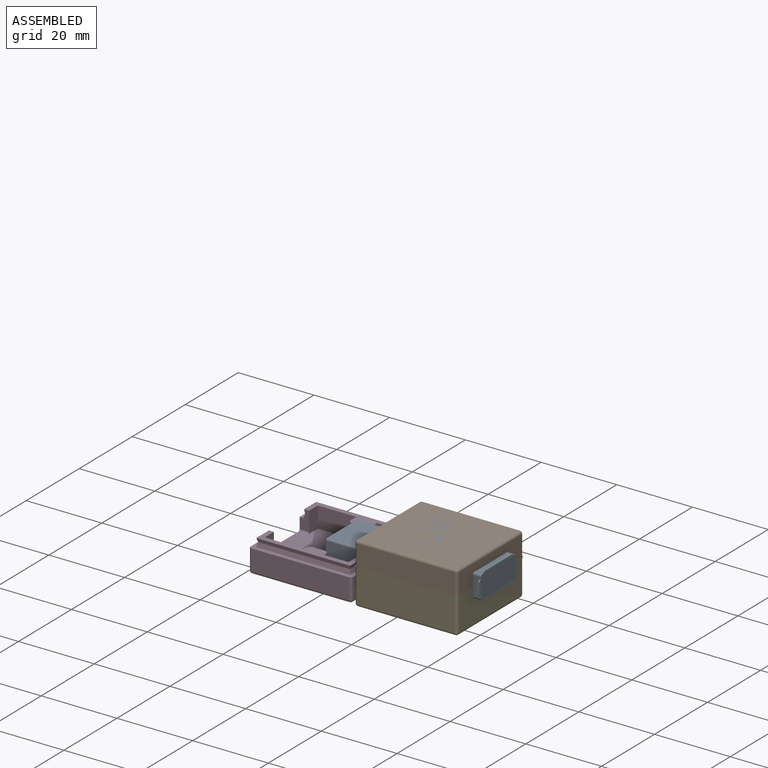
[diagram: assembled view]
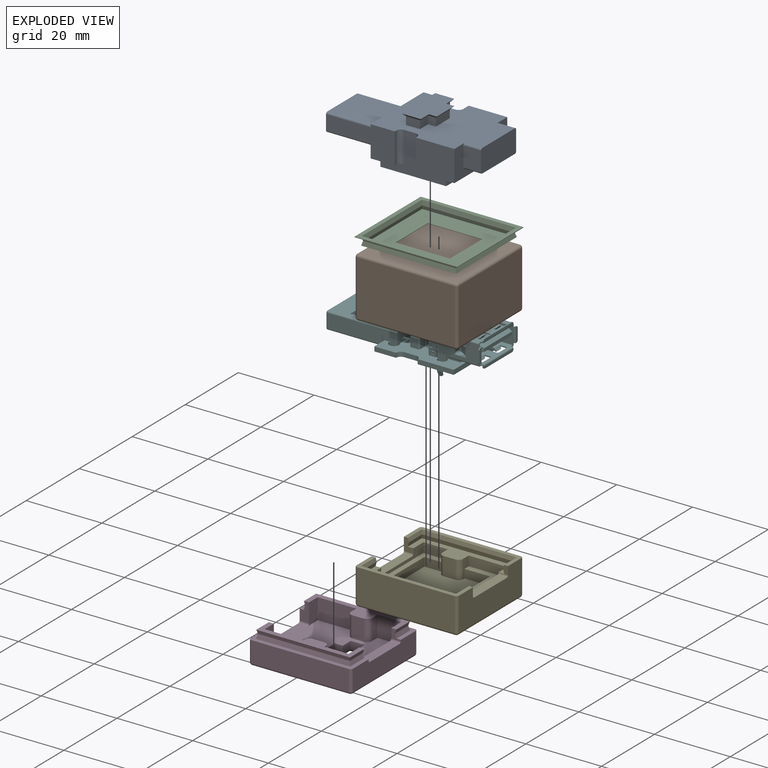
[diagram: exploded view]
GUIDED TOUR — FREECAD ASSEMBLY "case"

This assembly has 6 components, labeled P0..P5 below (a component is one placed body or linked part; the same part can appear more than once), held together by 0 modeled joints plus 9 derived contact edges. A joint is a constraint between two components; its type names the relative motion it leaves free:
  CONTACT — a derived adjacency edge — the two components touch in the source model (clearance under 2% of the assembly's diagonal); it is measured from the geometry, not a modeled constraint.
Axis/direction vectors are unit vectors and 'through' points are millimeter coordinates, both in the assembly's world frame.

MATES
  1. CONTACT "contact_0_4": P0 <-> P4, contact direction (0.000, 0.000, -1.000) through (5.79, -0.58, -0.26) mm (derived from contact, not a modeled constraint)
  2. CONTACT "contact_0_5": P0 <-> P5, contact direction (0.000, 0.000, -1.000) through (5.76, 0.05, -0.13) mm (derived from contact, not a modeled constraint)
  3. CONTACT "contact_1_3": P1 <-> P3, contact direction (-1.000, 0.000, 0.000) through (-3.51, -2.38, -4.31) mm (derived from contact, not a modeled constraint)
  4. CONTACT "contact_1_4": P1 <-> P4, contact direction (0.000, 0.000, -1.000) through (-2.41, -3.08, -4.41) mm (derived from contact, not a modeled constraint)
  5. CONTACT "contact_2_4": P2 <-> P4, contact direction (0.000, 0.000, -1.000) through (23.02, -2.06, 2.29) mm (derived from contact, not a modeled constraint)
  6. CONTACT "contact_2_5": P2 <-> P5, contact direction (0.000, 0.000, -1.000) through (17.48, 3.29, 2.28) mm (derived from contact, not a modeled constraint)
  7. CONTACT "contact_3_4": P3 <-> P4, contact direction (1.000, 0.000, 0.000) through (-3.50, 3.39, 1.04) mm (derived from contact, not a modeled constraint)
  8. CONTACT "contact_3_5": P3 <-> P5, contact direction (0.000, 1.000, 0.000) through (-5.56, 3.60, 3.78) mm (derived from contact, not a modeled constraint)
  9. CONTACT "contact_4_5": P4 <-> P5, contact direction (0.000, 0.000, 1.000) through (6.76, 1.20, -0.13) mm (derived from contact, not a modeled constraint)

ASSEMBLY ORDER
  1. P4 — the base component [order heuristic]
  2. P1 — core [order heuristic]
  3. P5 — core [order heuristic]
  4. P2 — core [order heuristic]
  5. P0 — core [order heuristic]
  6. P3 [order verified]
Order-tag legend:
  [order verified] — this step's position reverses a verified removal order: the component was checked to insert without passing through the ones already placed.
  [order heuristic] — the first 5 components form the assembly's core: parts whose collision-free extraction could not be verified, listed in mate-graph order.

Of the 6 components, 3 carry a construction recipe — the FreeCAD feature program (sketches with constraints, then the solid features that consume them) that regenerates the part from scratch, quoted from this document or from the linked companion document it references; the rest are supplied as boundary geometry only. The tour below walks the components in assembly order: each is shown spotlighted twice — in the assembled view, then in the exploded view, where a leader line traces a displaced component back to its assembled socket (components that stay in place when exploded have no leader line; saturated green if recipe-attached, orange if geometry-only; every other component desaturated gray) — followed by its recipe or geometry summary and the mates that hold it.
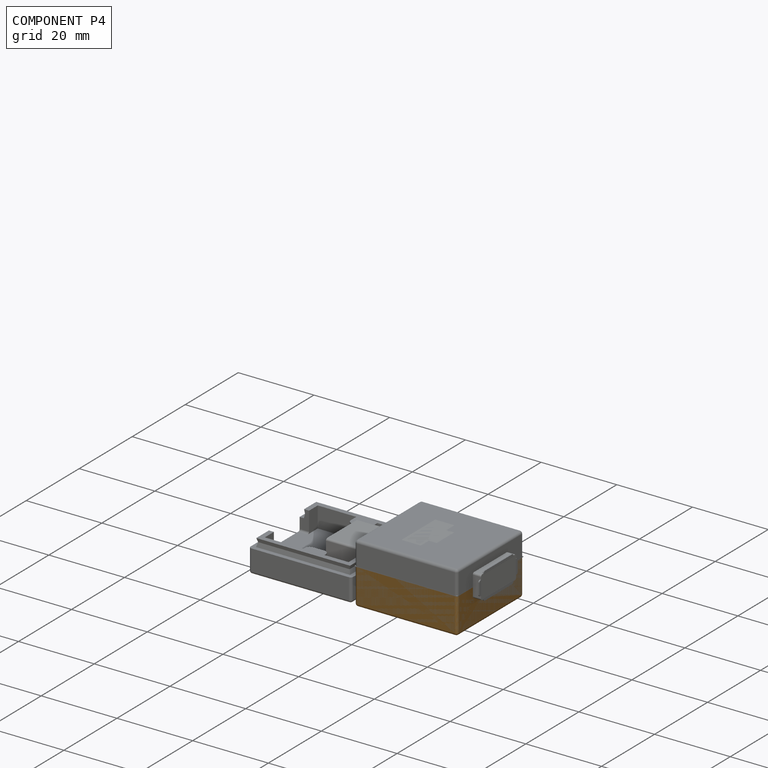
[diagram: component P4 — assembled]
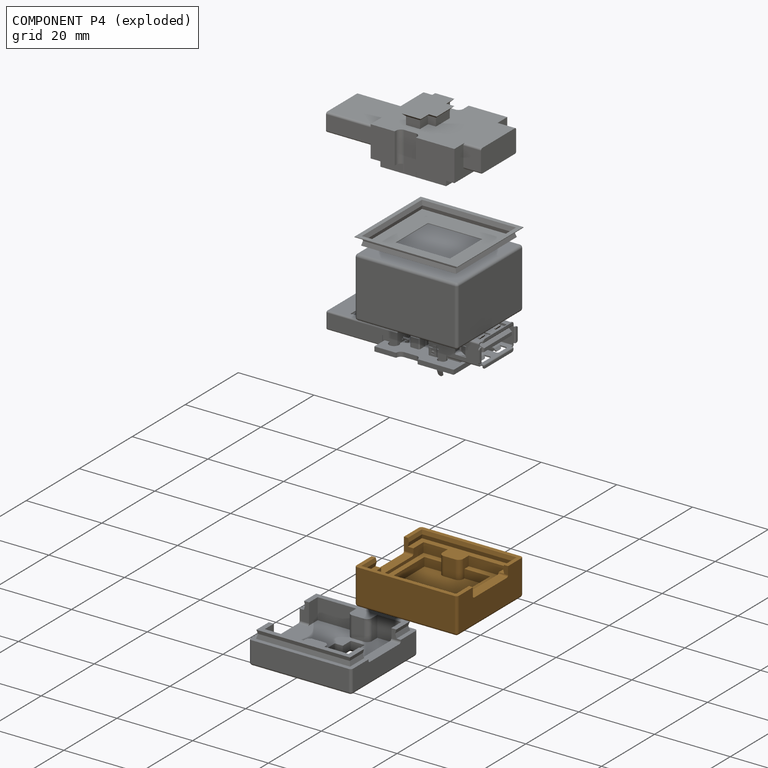
[diagram: component P4 — exploded]
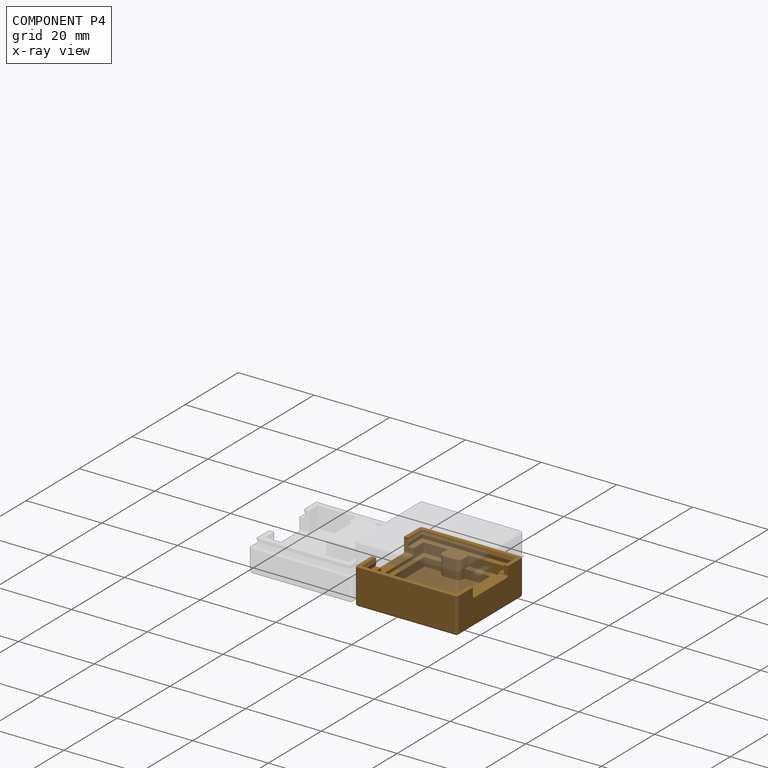
[diagram: component P4 — x-ray view]
COMPONENT P4 — geometry summary ("PO_Bottom"; no construction recipe available for this part):
  bounding box: 27.1 x 25.0 x 9.5 mm
  tessellated surface: 6,188 triangles
  volume: 3411 mm^3 (53% of its bounding box)
Held by: resting contact with P0 (derived edge); resting contact with P1 (derived edge); resting contact with P2 (derived edge); resting contact with P3 (derived edge); resting contact with P5 (derived edge).
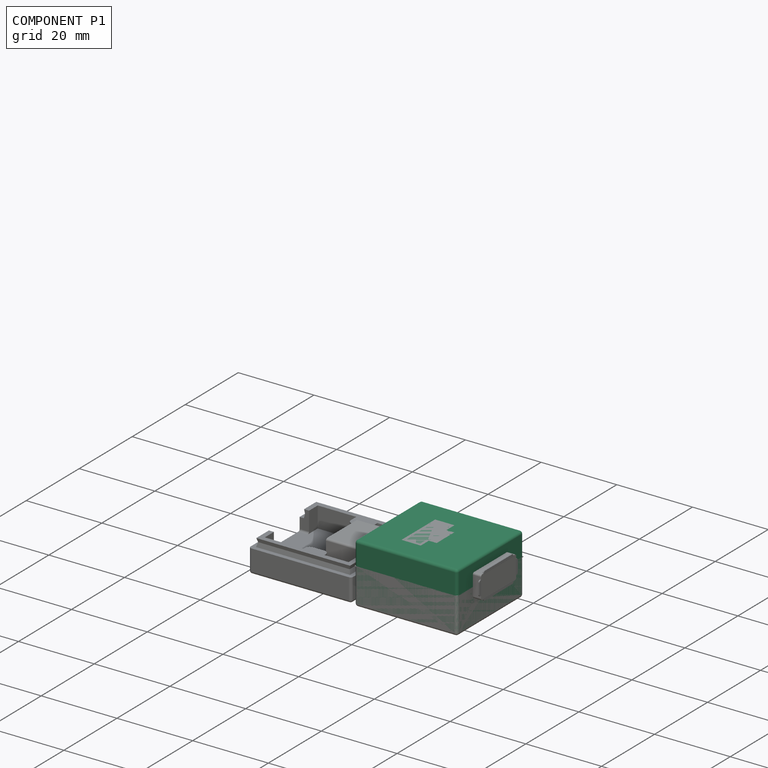
[diagram: component P1 — assembled]
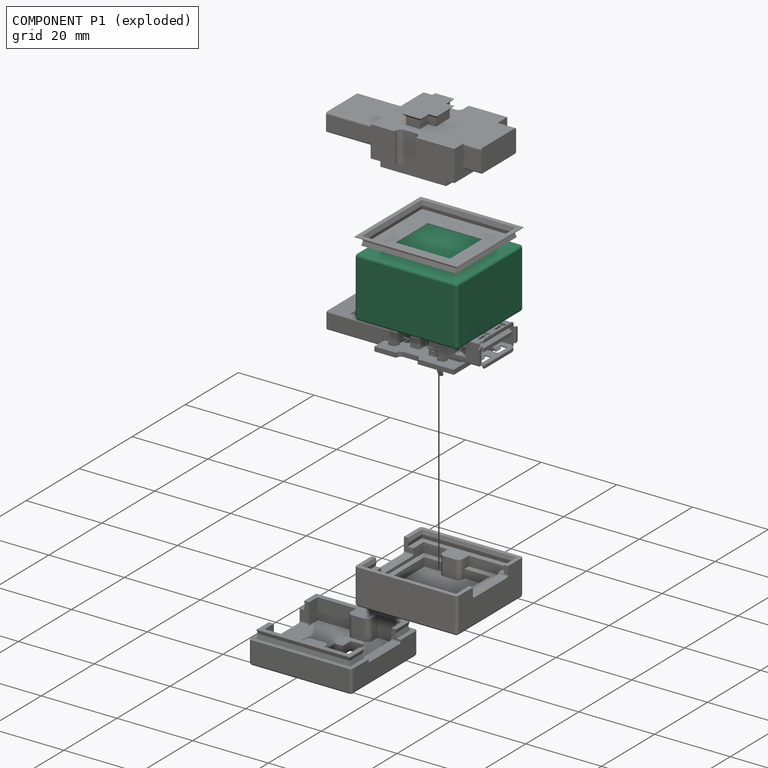
[diagram: component P1 — exploded]
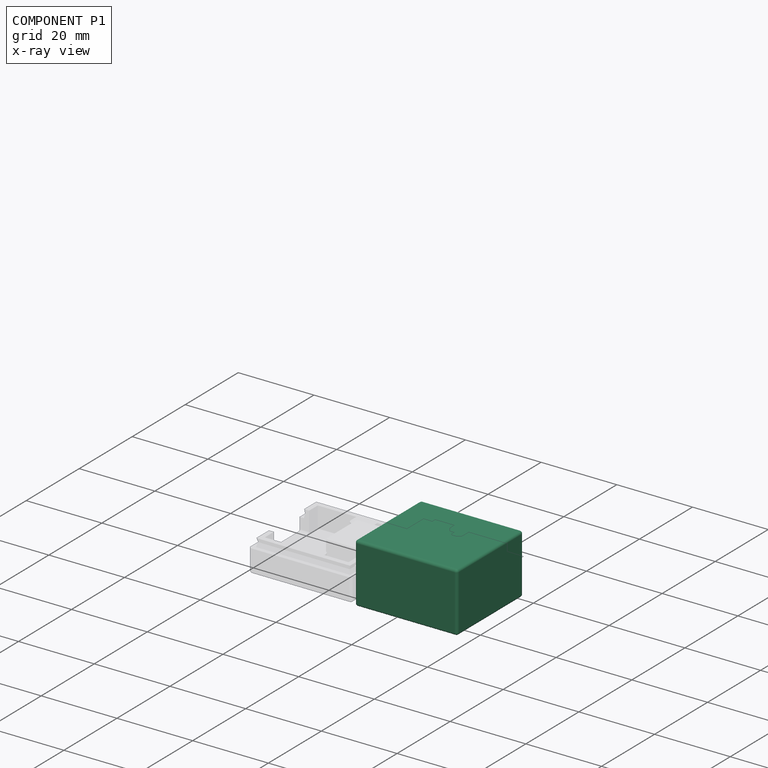
[diagram: component P1 — x-ray view]
COMPONENT P1 — recipe-attached ("BaseBody", modeled in this document).
Held by: resting contact with P3 (derived edge); resting contact with P4 (derived edge).
Construction recipe (the document's own serialized feature program — sketch geometry with constraints, then the solid features built on it; lengths are millimeters unless a unit is written):

FEATURE [Sketcher::SketchObject] Sketch008  label="BaseSketch"
  AttachmentOffset = pos=(0,0,-5.11) rot=(0,0,1;0rad)
  FullyConstrained = true
  MapMode = 5
  Placement = pos=(0,0,-5.11) rot=(0,0,1;0rad)
  Support = -> [XY_Plane005]
  expr: .AttachmentOffset.Base.z = -<<Param>>.T_WALL - <<Param>>.S_PIN - <<Param>>.T_Z
  expr: .Constraints.X1 = <<NegBaseSketch>>.Constraints.X1 - <<Param>>.T_WALL
  expr: .Constraints.X2 = <<NegBaseSketch>>.Constraints.X2 + <<Param>>.T_WALL
  expr: .Constraints.Y1 = <<NegBaseSketch>>.Constraints.Y1 - <<Param>>.T_WALL
  expr: .Constraints.Y2 = <<NegBaseSketch>>.Constraints.Y2 + <<Param>>.T_WALL
  sketch-geometry (4):
    g0: LineSegment StartX=-3.08 StartY=-3.08 StartZ=0 EndX=24.035 EndY=-3.08 EndZ=0
    g1: LineSegment StartX=24.035 StartY=-3.08 StartZ=0 EndX=24.035 EndY=21.876 EndZ=0
    g2: LineSegment StartX=24.035 StartY=21.876 StartZ=0 EndX=-3.08 EndY=21.876 EndZ=0
    g3: LineSegment StartX=-3.08 StartY=21.876 StartZ=0 EndX=-3.08 EndY=-3.08 EndZ=0
  constraints (12):
    c: Coincident(g0,g1)
    c: Coincident(g1,g2)
    c: Coincident(g2,g3)
    c: Coincident(g3,g0)
    c: Horizontal(g0)
    c: Horizontal(g2)
    c: Vertical(g1)
    c: Vertical(g3)
    c: DistanceX(g0) = -3.08  'X1'
    c: DistanceY(g0) = -3.08  'Y1'
    c: DistanceX(g1) = 24.035  'X2'
    c: DistanceY(g1) = 21.876  'Y2'
FEATURE [PartDesign::Pad] Pad006  label="BasePad"
  Direction = (0,0,1)
  Length = 15.84
  Length2 = 10
  Profile = -> Sketch008
  ReferenceAxis = -> Sketch008 [N_Axis]
  Type = 0
  expr: Length = <<NegBasePad>>.Length + <<Param>>.S_PIN + 2 * (<<Param>>.T_WALL + <<Param>>.T_Z)
FEATURE [PartDesign::Fillet] Fillet  label="BaseFillet"
  Base = -> Pad006 [Face6,Face1,Face5,Face3,Face4,Face2]
  BaseFeature = -> Pad006
  Radius = 0.7
  SupportTransform = false
  UseAllEdges = false
  expr: Radius = <<Param>>.R_CORNER
FEATURE [PartDesign::Body] Body001  label="BaseBody"
  Group = -> [Sketch008,Pad006,Fillet]
  Origin = -> Origin005
  Tip = -> Fillet
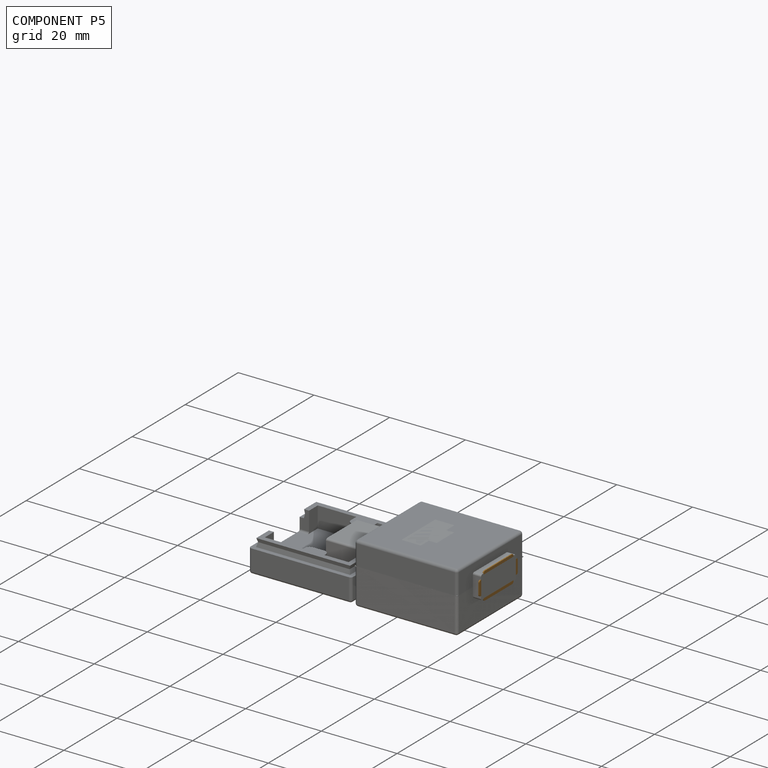
[diagram: component P5 — assembled]
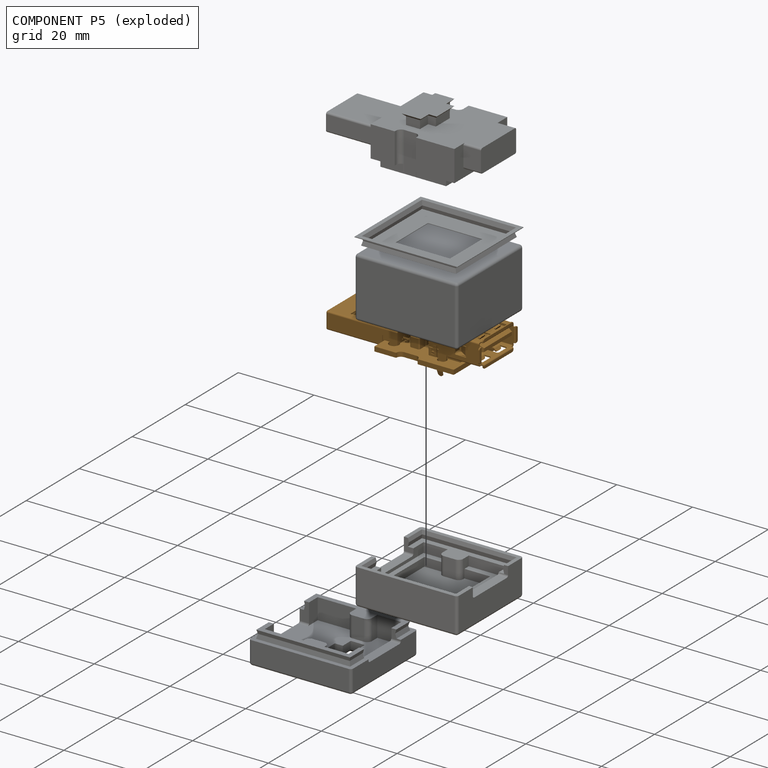
[diagram: component P5 — exploded]
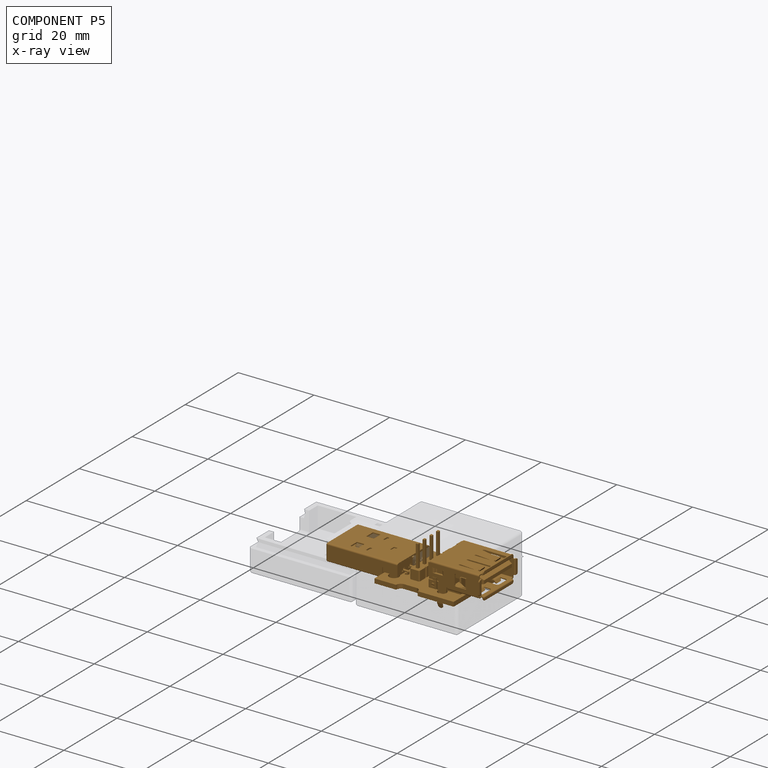
[diagram: component P5 — x-ray view]
COMPONENT P5 — geometry summary ("Open CASCADE STEP translator 6.9 1"; no construction recipe available for this part):
  bounding box: 41.3 x 18.8 x 12.3 mm
  tessellated surface: 49,550 triangles
  volume: 1748 mm^3 (18% of its bounding box)
  symmetry: mirror-symmetric across its y mid-plane
Held by: resting contact with P0 (derived edge); resting contact with P2 (derived edge); resting contact with P3 (derived edge); resting contact with P4 (derived edge).
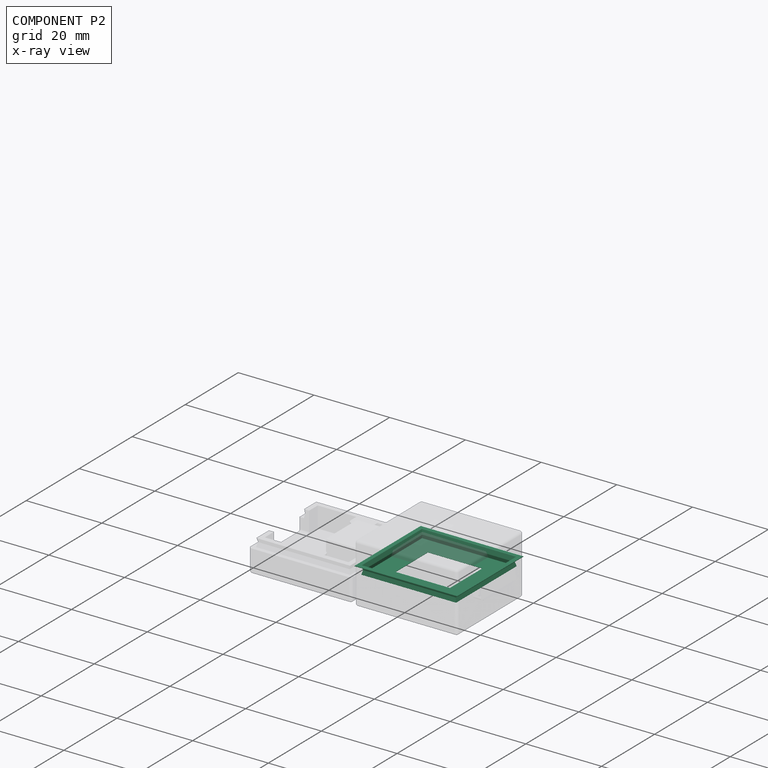
[diagram: component P2 — x-ray view]
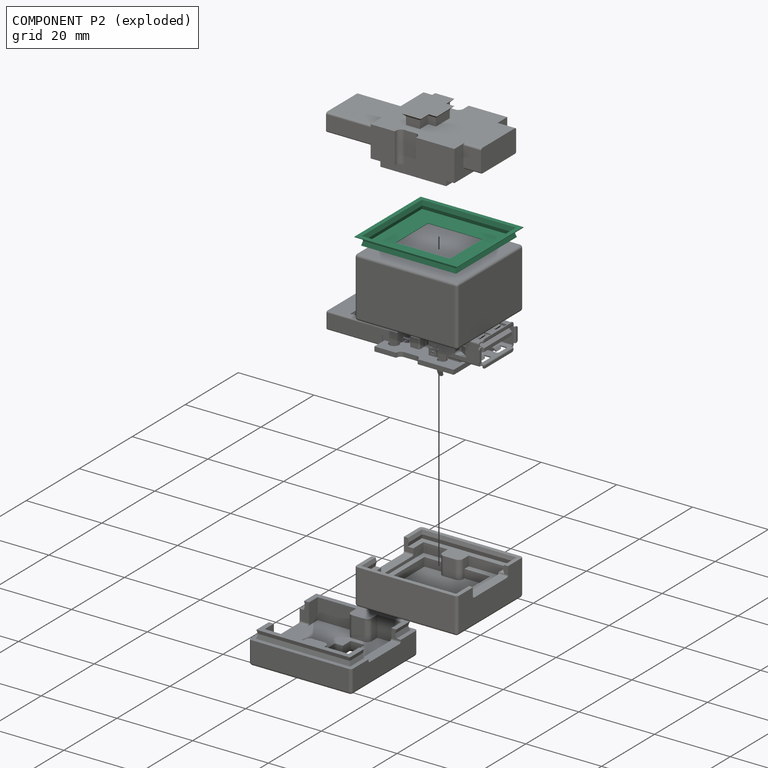
[diagram: component P2 — exploded]
COMPONENT P2 — recipe-attached ("Gap", modeled in this document).
Held by: resting contact with P4 (derived edge); resting contact with P5 (derived edge).
Construction recipe (the document's own serialized feature program — sketch geometry with constraints, then the solid features built on it; lengths are millimeters unless a unit is written):

FEATURE [Sketcher::SketchObject] Sketch009  label="GapProfileSketch"
  FullyConstrained = true
  MapMode = 5
  Placement = pos=(0,0,0) rot=(1,0,0;1.5708rad)
  Support = -> [XZ_Plane006]
  expr: .Constraints.Y1 = <<NegUsbJackSketch>>.Placement.Base.z + <<NegUsbJackEdgeSketch>>.Constraints.R1
  expr: Constraints[14] = max(max(<<NegBaseSketch>>.Constraints.X1; <<NegMountSketch>>.Constraints.Y1); <<NegBaseSketch>>.Constraints.Y2 - <<NegMountSketch>>.Constraints.Y2)
  expr: Constraints[15] = <<NegBaseSketch>>.Constraints.X1 - <<Param>>.T_WALL
  expr: Constraints[17] = 2 * <<Param>>.T_Z
  expr: Constraints[18] = 2 * <<Param>>.T_XY
  expr: Constraints[19] = <<Param>>.D_LATCH
  expr: Constraints[20] = <<Param>>.D_LATCH + 2 * <<Param>>.T_XY
  expr: Constraints[27] = <<Param>>.A_LATCH
  expr: Constraints[28] = 180 ° - <<Param>>.A_LATCH
  expr: Constraints[32] = <<NegBaseSketch>>.Constraints.Y1
  sketch-geometry (11):
    g0: LineSegment StartX=-3.08 StartY=4.57 StartZ=0 EndX=-1.94292 EndY=4.57 EndZ=0
    g1: LineSegment StartX=-1.90005 StartY=2.41 StartZ=0 EndX=3.294 EndY=2.41 EndZ=0
    g2: LineSegment StartX=3.294 StartY=2.41 StartZ=0 EndX=3.294 EndY=2.29 EndZ=0
    g3: LineSegment StartX=3.294 StartY=2.29 StartZ=0 EndX=-2.06005 EndY=2.29 EndZ=0
    g4: LineSegment StartX=-2.0279 StartY=4.41 StartZ=0 EndX=-3.08 EndY=4.41 EndZ=0
    g5: LineSegment StartX=-3.08 StartY=4.41 StartZ=0 EndX=-3.08 EndY=4.57 EndZ=0
    g6: LineSegment StartX=-1.94292 StartY=4.57 StartZ=0 EndX=-1.6321 EndY=3.41 EndZ=0
    g7: LineSegment StartX=-1.6321 StartY=3.41 StartZ=0 EndX=-1.90005 EndY=2.41 EndZ=0
    g8: LineSegment StartX=-2.06005 StartY=2.29 StartZ=0 EndX=-1.75995 EndY=3.41 EndZ=0
    g9: LineSegment StartX=-1.75995 StartY=3.41 StartZ=0 EndX=-2.0279 EndY=4.41 EndZ=0
    g10: LineSegment StartX=-1.6321 StartY=3.41 StartZ=0 EndX=-0.58 EndY=3.41 EndZ=0
  constraints (33):
    c: Horizontal(g0)
    c: Coincident(g0,g6)
    c: Coincident(g7,g1)
    c: Horizontal(g1)
    c: Coincident(g1,g2)
    c: Vertical(g2)
    c: Coincident(g2,g3)
    c: Horizontal(g3)
    c: Coincident(g3,g8)
    c: Coincident(g9,g4)
    c: Horizontal(g4)
    c: Coincident(g4,g5)
    c: Coincident(g5,g0)
    c: Vertical(g5)
    c: DistanceX(g2) = 3.294
    c: DistanceX(g4) = -3.08
    c: DistanceY(g2) = 2.29  'Y1'
    c: DistanceY(g2,g2) = 0.12
    c: DistanceX(g3,g7) = 0.16
    c: DistanceY(g7,g9) = 2
    c: DistanceY(g7,g6) = 2.16
    c: Coincident(g6,g7)
    c: Coincident(g8,g9)
    c: Horizontal(g6,g8)
    c: Parallel(g6,g9)
    c: Parallel(g8,g7)
    c: Equal(g9,g7)
    c: Angle(g1,g7) = 1.309
    c: Angle(g4,g9) = 1.8326
    c: Coincident(g10,g6)
    c: Horizontal(g10)
    c: Equal(g10,g4)
    c: DistanceX(g10) = -0.58
FEATURE [PartDesign::ShapeBinder] ShapeBinder  label="NegBaseSketchShapeBinder"
  Placement = pos=(0,0,-0.26) rot=(0,0,1;0rad)
  Support = -> [Sketch]
  TraceSupport = false
FEATURE [PartDesign::AdditivePipe] AdditivePipe
  AuxilleryCurvelinear = true
  AuxillerySpineTangent = false
  Binormal = (0,0,0)
  Mode = 0
  Placement = pos=(0,0,0) rot=(1,0,0;1.5708rad)
  Profile = -> Sketch009
  Spine = -> ShapeBinder
  SpineTangent = false
  Transformation = 0
  Transition = 1
FEATURE [PartDesign::Body] Body002  label="Gap"
  Group = -> [Sketch009,ShapeBinder,AdditivePipe]
  Origin = -> Origin006
  Tip = -> AdditivePipe
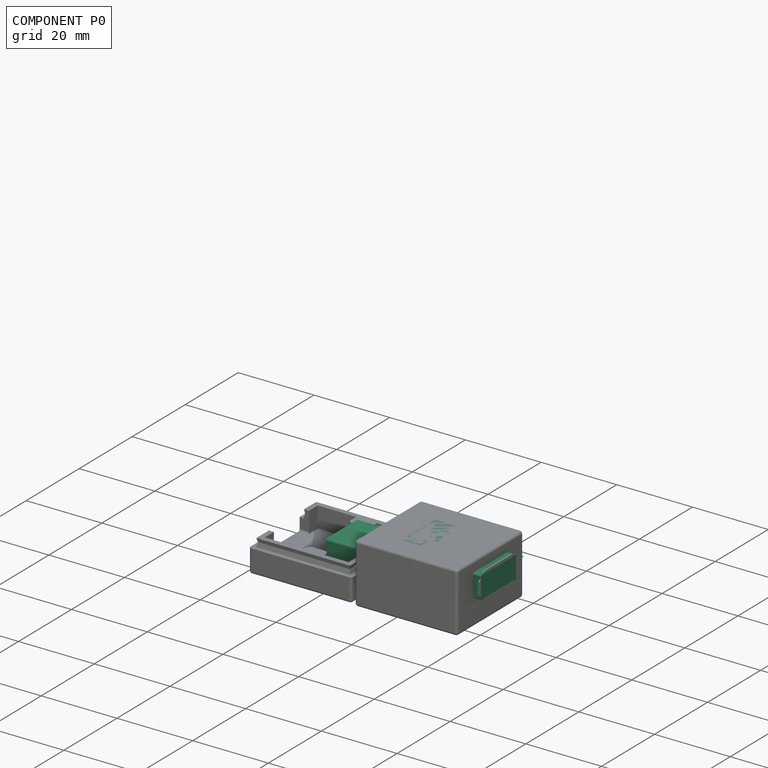
[diagram: component P0 — assembled]
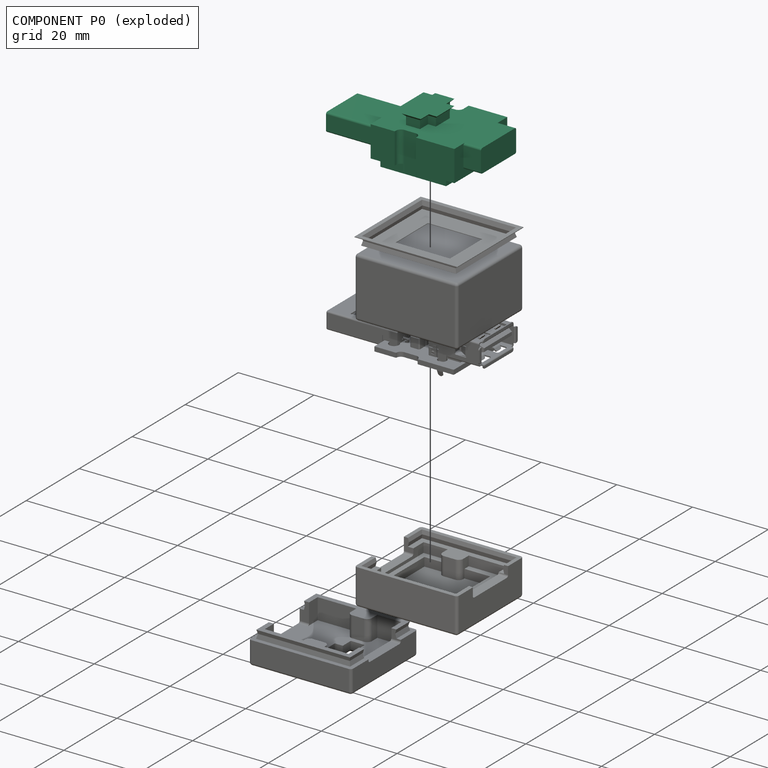
[diagram: component P0 — exploded]
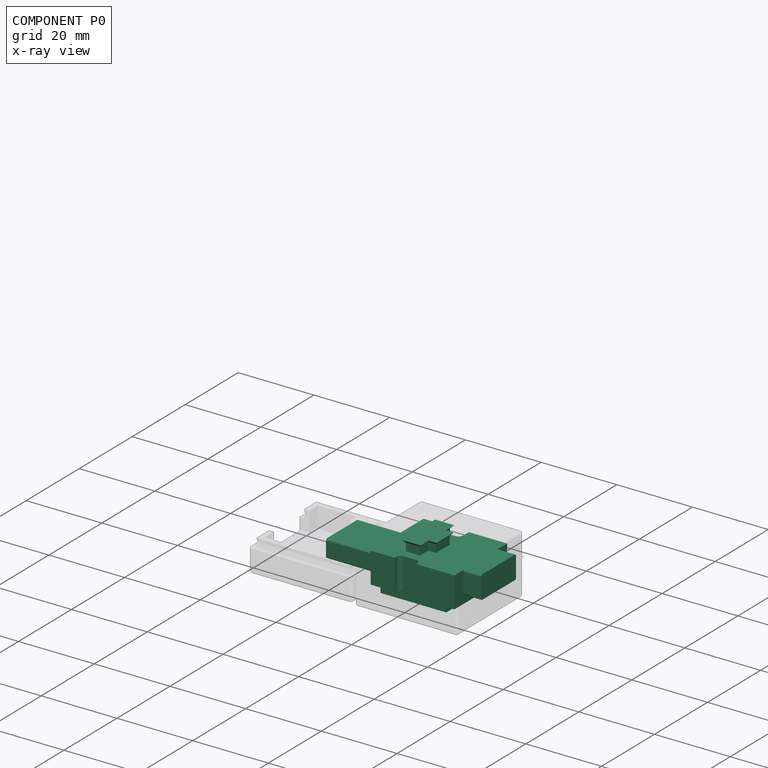
[diagram: component P0 — x-ray view]
COMPONENT P0 — recipe-attached ("Negative", modeled in this document).
Held by: resting contact with P4 (derived edge); resting contact with P5 (derived edge).
Construction recipe (the document's own serialized feature program — sketch geometry with constraints, then the solid features built on it; lengths are millimeters unless a unit is written):

FEATURE [Sketcher::SketchObject] Sketch  label="NegBaseSketch"
  AttachmentOffset = pos=(0,0,-0.26) rot=(0,0,1;0rad)
  FullyConstrained = true
  MapMode = 5
  Placement = pos=(0,0,-0.26) rot=(0,0,1;0rad)
  Support = -> [XY_Plane004]
  expr: .AttachmentOffset.Base.z = -0.2 mm - <<Param>>.T_Z
  expr: .Constraints.X1 = -<<Param>>.S_SIDE - <<Param>>.T_XY
  expr: .Constraints.X2 = 20.955 mm + <<Param>>.S_SIDE + <<Param>>.T_XY
  expr: .Constraints.Y1 = -<<Param>>.S_SIDE - <<Param>>.T_XY
  expr: .Constraints.Y2 = 18.796 mm + <<Param>>.S_SIDE + <<Param>>.T_XY
  sketch-geometry (4):
    g0: LineSegment StartX=-0.58 StartY=-0.58 StartZ=0 EndX=21.535 EndY=-0.58 EndZ=0
    g1: LineSegment StartX=21.535 StartY=-0.58 StartZ=0 EndX=21.535 EndY=19.376 EndZ=0
    g2: LineSegment StartX=21.535 StartY=19.376 StartZ=0 EndX=-0.58 EndY=19.376 EndZ=0
    g3: LineSegment StartX=-0.58 StartY=19.376 StartZ=0 EndX=-0.58 EndY=-0.58 EndZ=0
  constraints (12):
    c: Coincident(g0,g1)
    c: Coincident(g1,g2)
    c: Coincident(g2,g3)
    c: Coincident(g3,g0)
    c: Horizontal(g0)
    c: Horizontal(g2)
    c: Vertical(g1)
    c: Vertical(g3)
    c: DistanceX(g1) = 21.535  'X2'
    c: DistanceY(g1) = 19.376  'Y2'
    c: DistanceX(g0) = -0.58  'X1'
    c: DistanceY(g0) = -0.58  'Y1'
FEATURE [PartDesign::Pad] Pad  label="NegBasePad"
  Direction = (0,0,1)
  Length = 8.17
  Length2 = 10
  Profile = -> Sketch
  ReferenceAxis = -> Sketch [N_Axis]
  Type = 0
  expr: Length = 8.05 mm + 2 * <<Param>>.T_Z
FEATURE [Sketcher::SketchObject] Sketch001  label="NegUsbJackSketch"
  AttachmentOffset = pos=(0,0,1.79) rot=(0,0,1;0rad)
  FullyConstrained = true
  MapMode = 5
  Placement = pos=(0,0,1.79) rot=(0,0,1;0rad)
  Support = -> [XY_Plane004]
  expr: .AttachmentOffset.Base.z = 1.85 mm - <<Param>>.T_Z
  expr: .Constraints.Y1 = 2.919 mm - <<Param>>.T_XY
  expr: .Constraints.Y2 = 16.03 mm + <<Param>>.T_XY
  sketch-geometry (4):
    g0: LineSegment StartX=12.18 StartY=2.839 StartZ=0 EndX=26.18 EndY=2.839 EndZ=0
    g1: LineSegment StartX=26.18 StartY=2.839 StartZ=0 EndX=26.18 EndY=16.11 EndZ=0
    g2: LineSegment StartX=26.18 StartY=16.11 StartZ=0 EndX=12.18 EndY=16.11 EndZ=0
    g3: LineSegment StartX=12.18 StartY=16.11 StartZ=0 EndX=12.18 EndY=2.839 EndZ=0
  constraints (12):
    c: Coincident(g0,g1)
    c: Coincident(g1,g2)
    c: Coincident(g2,g3)
    c: Coincident(g3,g0)
    c: Horizontal(g0)
    c: Horizontal(g2)
    c: Vertical(g1)
    c: Vertical(g3)
    c: DistanceX(g0) = 12.18  'X1'
    c: DistanceY(g0) = 2.839  'Y1'
    c: DistanceX(g1) = 26.18  'X2'
    c: DistanceY(g1) = 16.11  'Y2'
FEATURE [PartDesign::Pad] Pad002  label="NegUsbJackPad"
  BaseFeature = -> Pad
  Direction = (0,0,1)
  Length = 6.12
  Length2 = 10
  Profile = -> Sketch001
  ReferenceAxis = -> Sketch001 [N_Axis]
  Type = 0
  expr: Length = 6 mm + 2 * <<Param>>.T_Z
FEATURE [Sketcher::SketchObject] Sketch003  label="NegUsbPlugSketch"
  AttachmentOffset = pos=(0,0,0.54) rot=(0,0,1;0rad)
  FullyConstrained = true
  MapMode = 5
  Placement = pos=(0,0,0.54) rot=(0,0,1;0rad)
  Support = -> [XY_Plane004]
  expr: .AttachmentOffset.Base.z = 0.6 mm - <<Param>>.T_Z
  expr: .Constraints.Y1 = 3.469 mm - <<Param>>.T_XY
  expr: .Constraints.Y2 = 15.469 mm + <<Param>>.T_XY
  sketch-geometry (4):
    g0: LineSegment StartX=-15.14 StartY=3.389 StartZ=0 EndX=3.66 EndY=3.389 EndZ=0
    g1: LineSegment StartX=3.66 StartY=3.389 StartZ=0 EndX=3.66 EndY=15.549 EndZ=0
    g2: LineSegment StartX=3.66 StartY=15.549 StartZ=0 EndX=-15.14 EndY=15.549 EndZ=0
    g3: LineSegment StartX=-15.14 StartY=15.549 StartZ=0 EndX=-15.14 EndY=3.389 EndZ=0
  constraints (12):
    c: Coincident(g0,g1)
    c: Coincident(g1,g2)
    c: Coincident(g2,g3)
    c: Coincident(g3,g0)
    c: Horizontal(g0)
    c: Horizontal(g2)
    c: Vertical(g1)
    c: Vertical(g3)
    c: DistanceX(g0) = 3.66  'X1'
    c: DistanceY(g0) = 3.389  'Y1'
    c: DistanceX(g2) = -15.14  'X2'
    c: DistanceY(g2) = 15.549  'Y2'
FEATURE [PartDesign::Pad] Pad003  label="NegUsbPlugPad"
  BaseFeature = -> Pad002
  Direction = (0,0,1)
  Length = 4.82
  Length2 = 10
  Profile = -> Sketch003
  ReferenceAxis = -> Sketch003 [N_Axis]
  Type = 0
  expr: Length = 4.7 mm + 2 * <<Param>>.T_Z
FEATURE [Sketcher::SketchObject] Sketch004  label="NegPinsSketch"
  FullyConstrained = true
  MapMode = 5
  Support = -> [XY_Plane004]
  expr: .Constraints.X1 = 1.356 mm - 0.5 mm - <<Param>>.T_XY
  expr: .Constraints.X2 = 17.068 mm + 1 mm + <<Param>>.T_XY
  expr: .Constraints.Y1 = 1.749 mm - 0.5 mm - <<Param>>.T_XY
  expr: .Constraints.Y2 = 17.189 mm + 0.5 mm + <<Param>>.T_XY
  sketch-geometry (4):
    g0: LineSegment StartX=0.776 StartY=17.769 StartZ=0 EndX=18.148 EndY=17.769 EndZ=0
    g1: LineSegment StartX=18.148 StartY=17.769 StartZ=0 EndX=18.148 EndY=1.169 EndZ=0
    g2: LineSegment StartX=18.148 StartY=1.169 StartZ=0 EndX=0.776 EndY=1.169 EndZ=0
    g3: LineSegment StartX=0.776 StartY=1.169 StartZ=0 EndX=0.776 EndY=17.769 EndZ=0
  constraints (12):
    c: Coincident(g0,g1)
    c: Coincident(g1,g2)
    c: Coincident(g2,g3)
    c: Coincident(g3,g0)
    c: Horizontal(g0)
    c: Horizontal(g2)
    c: Vertical(g1)
    c: Vertical(g3)
    c: DistanceX(g2) = 0.776  'X1'
    c: DistanceY(g2) = 1.169  'Y1'
    c: DistanceX(g0) = 18.148  'X2'
    c: DistanceY(g0) = 17.769  'Y2'
FEATURE [PartDesign::Pad] Pad004  label="NegPinsPad"
  BaseFeature = -> Pad003
  Direction = (0,0,1)
  Length = 2.55
  Length2 = 10
  Profile = -> Sketch004
  ReferenceAxis = -> Sketch004 [N_Axis]
  Reversed = true
  Type = 0
  expr: Length = <<Param>>.S_PIN
FEATURE [Sketcher::SketchObject] Sketch005  label="NegUsbJackEdgeSketch"
  AttachmentOffset = pos=(0,0,21.535) rot=(0,0,1;0rad)
  FullyConstrained = true
  MapMode = 5
  Placement = pos=(21.535,-4.8e-15,4.8e-15) rot=(0.57735,0.57735,0.57735;2.0944rad)
  Support = -> [YZ_Plane004]
  expr: .AttachmentOffset.Base.z = <<NegBaseSketch>>.Constraints.X2
  expr: .Constraints.X1 = <<NegUsbJackSketch>>.Constraints.Y1
  expr: .Constraints.X2 = <<NegUsbJackSketch>>.Constraints.Y2
  expr: .Constraints.Y1 = <<NegUsbJackSketch>>.Placement.Base.z
  expr: .Constraints.Y2 = <<NegUsbJackSketch>>.Placement.Base.z + <<NegUsbJackPad>>.Length
  expr: Constraints[38] = .Constraints.X1 - 1 mm
  expr: Constraints[39] = .Constraints.Y1 - 1 mm
  sketch-geometry (17):
    g0: LineSegment StartX=3.339 StartY=7.91 StartZ=0 EndX=15.61 EndY=7.91 EndZ=0
    g1: LineSegment StartX=16.11 StartY=7.41 StartZ=0 EndX=16.11 EndY=2.29 EndZ=0
    g2: LineSegment StartX=15.61 StartY=1.79 StartZ=0 EndX=3.339 EndY=1.79 EndZ=0
    g3: LineSegment StartX=2.839 StartY=2.29 StartZ=0 EndX=2.839 EndY=7.41 EndZ=0
    g4: LineSegment StartX=1.839 StartY=8.91 StartZ=0 EndX=17.11 EndY=8.91 EndZ=0
    g5: LineSegment StartX=17.11 StartY=8.91 StartZ=0 EndX=17.11 EndY=0.79 EndZ=0
    g6: LineSegment StartX=17.11 StartY=0.79 StartZ=0 EndX=1.839 EndY=0.79 EndZ=0
    g7: LineSegment StartX=1.839 StartY=0.79 StartZ=0 EndX=1.839 EndY=8.91 EndZ=0
    g8: ArcOfCircle CenterX=3.339 CenterY=7.41 CenterZ=0 NormalX=0 NormalY=0 NormalZ=1 AngleXU=0 Radius=0.5 StartAngle=1.5708 EndAngle=3.14159
    g9: GeomPoint X=2.839 Y=7.91 Z=0
    g10: ArcOfCircle CenterX=3.339 CenterY=2.29 CenterZ=0 NormalX=0 NormalY=0 NormalZ=1 AngleXU=0 Radius=0.5 StartAngle=3.14159 EndAngle=4.71239
    g11: GeomPoint X=2.839 Y=1.79 Z=0
    g12: ArcOfCircle CenterX=15.61 CenterY=2.29 CenterZ=0 NormalX=0 NormalY=0 NormalZ=1 AngleXU=0 Radius=0.5 StartAngle=4.71239 EndAngle=6.28319
    g13: GeomPoint X=16.11 Y=1.79 Z=0
    g14: ArcOfCircle CenterX=15.61 CenterY=7.41 CenterZ=0 NormalX=0 NormalY=0 NormalZ=1 AngleXU=0 Radius=0.5 StartAngle=0 EndAngle=1.5708
    g15: GeomPoint X=16.11 Y=7.91 Z=0
    g16: GeomPoint X=9.4745 Y=4.85 Z=0
  constraints (40):
    c: Horizontal(g0)
    c: Horizontal(g2)
    c: Vertical(g1)
    c: Vertical(g3)
    c: Coincident(g4,g5)
    c: Coincident(g5,g6)
    c: Coincident(g6,g7)
    c: Coincident(g7,g4)
    c: Horizontal(g4)
    c: Horizontal(g6)
    c: Vertical(g5)
    c: Vertical(g7)
    c: DistanceX(g11) = 2.839  'X1'
    c: DistanceY(g11) = 1.79  'Y1'
    c: DistanceX(g15) = 16.11  'X2'
    c: DistanceY(g15) = 7.91  'Y2'
    c: PointOnObject(g9,g0)
    c: PointOnObject(g9,g3)
    c: Tangent(g0,g8) = 1.5708
    c: Tangent(g3,g8) = 1.5708
    c: PointOnObject(g11,g3)
    c: PointOnObject(g11,g2)
    c: Tangent(g3,g10) = 1.5708
    c: Tangent(g2,g10) = 1.5708
    c: PointOnObject(g13,g2)
    c: PointOnObject(g13,g1)
    c: Tangent(g2,g12) = 1.5708
    c: Tangent(g1,g12) = 1.5708
    c: PointOnObject(g15,g1)
    c: PointOnObject(g15,g0)
    c: Tangent(g1,g14) = 1.5708
    c: Tangent(g0,g14) = 1.5708
    c: Equal(g14,g8)
    c: Equal(g8,g10)
    c: Equal(g10,g12)
    c: Radius(g14) = 0.5  'R1'
    c: Symmetric(g11,g15,g16)
    c: Symmetric(g4,g6,g16)
    c: DistanceX(g6) = 1.839
    c: DistanceY(g6) = 0.79
FEATURE [PartDesign::Pocket] Pocket  label="NegUsbJackEdgePocket"
  BaseFeature = -> Pad004
  Direction = (-1,2e-16,-3e-16)
  Length = 5
  Length2 = 5
  Profile = -> Sketch005
  ReferenceAxis = -> Sketch005 [N_Axis]
  Reversed = true
  Type = 1
FEATURE [Sketcher::SketchObject] Sketch006  label="NegUsbPlugEdgeSketch"
  AttachmentOffset = pos=(0,0,-0.58) rot=(0,0,1;0rad)
  FullyConstrained = true
  MapMode = 5
  Placement = pos=(-0.58,1e-16,-1e-16) rot=(0.57735,0.57735,0.57735;2.0944rad)
  Support = -> [YZ_Plane004]
  expr: .AttachmentOffset.Base.z = <<NegBaseSketch>>.Constraints.X1
  expr: .Constraints.X1 = <<NegUsbPlugSketch>>.Constraints.Y1
  expr: .Constraints.X2 = <<NegUsbPlugSketch>>.Constraints.Y2
  expr: .Constraints.Y1 = <<NegUsbPlugSketch>>.Placement.Base.z
  expr: .Constraints.Y2 = <<NegUsbPlugSketch>>.Placement.Base.z + <<NegUsbPlugPad>>.Length
  expr: Constraints[18] = .Constraints.X1 - 1 mm
  expr: Constraints[19] = .Constraints.Y1 - 1 mm
  sketch-geometry (17):
    g0: LineSegment StartX=3.889 StartY=5.36 StartZ=0 EndX=15.049 EndY=5.36 EndZ=0
    g1: LineSegment StartX=15.549 StartY=4.86 StartZ=0 EndX=15.549 EndY=1.04 EndZ=0
    g2: LineSegment StartX=15.049 StartY=0.54 StartZ=0 EndX=3.889 EndY=0.54 EndZ=0
    g3: LineSegment StartX=3.389 StartY=1.04 StartZ=0 EndX=3.389 EndY=4.86 EndZ=0
    g4: LineSegment StartX=2.389 StartY=6.36 StartZ=0 EndX=16.549 EndY=6.36 EndZ=0
    g5: LineSegment StartX=16.549 StartY=6.36 StartZ=0 EndX=16.549 EndY=-0.46 EndZ=0
    g6: LineSegment StartX=16.549 StartY=-0.46 StartZ=0 EndX=2.389 EndY=-0.46 EndZ=0
    g7: LineSegment StartX=2.389 StartY=-0.46 StartZ=0 EndX=2.389 EndY=6.36 EndZ=0
    g8: GeomPoint X=9.469 Y=2.95 Z=0
    g9: ArcOfCircle CenterX=3.889 CenterY=4.86 CenterZ=0 NormalX=0 NormalY=0 NormalZ=1 AngleXU=0 Radius=0.5 StartAngle=1.5708 EndAngle=3.14159
    g10: GeomPoint X=3.389 Y=5.36 Z=0
    g11: ArcOfCircle CenterX=15.049 CenterY=4.86 CenterZ=0 NormalX=0 NormalY=0 NormalZ=1 AngleXU=0 Radius=0.5 StartAngle=0 EndAngle=1.5708
    g12: GeomPoint X=15.549 Y=5.36 Z=0
    g13: ArcOfCircle CenterX=15.049 CenterY=1.04 CenterZ=0 NormalX=0 NormalY=0 NormalZ=1 AngleXU=0 Radius=0.5 StartAngle=4.71239 EndAngle=6.28319
    g14: GeomPoint X=15.549 Y=0.54 Z=0
    g15: ArcOfCircle CenterX=3.889 CenterY=1.04 CenterZ=0 NormalX=0 NormalY=0 NormalZ=1 AngleXU=0 Radius=0.5 StartAngle=3.14159 EndAngle=4.71239
    g16: GeomPoint X=3.389 Y=0.54 Z=0
  constraints (40):
    c: Horizontal(g0)
    c: Horizontal(g2)
    c: Vertical(g1)
    c: Vertical(g3)
    c: Coincident(g4,g5)
    c: Coincident(g5,g6)
    c: Coincident(g6,g7)
    c: Coincident(g7,g4)
    c: Horizontal(g4)
    c: Horizontal(g6)
    c: Vertical(g5)
    c: Vertical(g7)
    c: DistanceX(g16) = 3.389  'X1'
    c: DistanceY(g16) = 0.54  'Y1'
    c: DistanceX(g12) = 15.549  'X2'
    c: DistanceY(g12) = 5.36  'Y2'
    c: Symmetric(g12,g16,g8)
    c: Symmetric(g6,g4,g8)
    c: DistanceX(g6) = 2.389
    c: DistanceY(g6) = -0.46
    c: PointOnObject(g10,g3)
    c: PointOnObject(g10,g0)
    c: Tangent(g3,g9) = 1.5708
    c: Tangent(g0,g9) = 1.5708
    c: PointOnObject(g12,g0)
    c: PointOnObject(g12,g1)
    c: Tangent(g0,g11) = 1.5708
    c: Tangent(g1,g11) = 1.5708
    c: PointOnObject(g14,g1)
    c: PointOnObject(g14,g2)
    c: Tangent(g1,g13) = 1.5708
    c: Tangent(g2,g13) = 1.5708
    c: PointOnObject(g16,g2)
    c: PointOnObject(g16,g3)
    c: Tangent(g2,g15) = 1.5708
    c: Tangent(g3,g15) = 1.5708
    c: Equal(g15,g9)
    c: Equal(g9,g11)
    c: Equal(g11,g13)
    c: Radius(g11) = 0.5  'R1'
FEATURE [PartDesign::Pocket] Pocket001  label="NegUsbPlugEdgePocket"
  BaseFeature = -> Pocket
  Direction = (-1,2e-16,-3e-16)
  Length = 5
  Length2 = 5
  Profile = -> Sketch006
  ReferenceAxis = -> Sketch006 [N_Axis]
  Type = 1
FEATURE [Sketcher::SketchObject] Sketch007  label="NegConnectorSketch"
  FullyConstrained = true
  MapMode = 5
  Support = -> [XY_Plane004]
  expr: Constraints[17] = <<Param>>.H_PIN_LATCH + 2 * <<Param>>.T_XY
  expr: Constraints[18] = 0.1 " + 2 * (<<Param>>.S_SIDE + <<Param>>.T_XY)
  expr: Constraints[19] = <<Param>>.W_PIN_LATCH + <<Param>>.T_XY
  expr: Constraints[21] = 4 * 0.1 " + 2 * (<<Param>>.S_SIDE + <<Param>>.T_XY)
  expr: Constraints[43] = 0.1 "
  sketch-geometry (15):
    g0: LineSegment StartX=5.9 StartY=14.82 StartZ=0 EndX=9.6 EndY=14.82 EndZ=0
    g1: LineSegment StartX=9.6 StartY=14.82 StartZ=0 EndX=9.6 EndY=11.78 EndZ=0
    g2: LineSegment StartX=9.6 StartY=3.5 StartZ=0 EndX=5.9 EndY=3.5 EndZ=0
    g3: LineSegment StartX=5.9 StartY=3.5 StartZ=0 EndX=5.9 EndY=14.82 EndZ=0
    g4: LineSegment StartX=9.6 StartY=11.78 StartZ=0 EndX=11.68 EndY=11.78 EndZ=0
    g5: LineSegment StartX=11.68 StartY=11.78 StartZ=0 EndX=11.68 EndY=6.54 EndZ=0
    g6: LineSegment StartX=11.68 StartY=6.54 StartZ=0 EndX=9.6 EndY=6.54 EndZ=0
    g7: LineSegment StartX=9.6 StartY=6.54 StartZ=0 EndX=9.6 EndY=3.5 EndZ=0
    g8: LineSegment StartX=7.75 StartY=14.82 StartZ=0 EndX=7.75 EndY=12.97 EndZ=0
    g9: LineSegment StartX=7.75 StartY=12.97 StartZ=0 EndX=7.75 EndY=10.43 EndZ=0
    g10: LineSegment StartX=7.75 StartY=10.43 StartZ=0 EndX=7.75 EndY=7.89 EndZ=0
    g11: LineSegment StartX=7.75 StartY=7.89 StartZ=0 EndX=7.75 EndY=5.35 EndZ=0
    g12: LineSegment StartX=7.75 StartY=5.35 StartZ=0 EndX=7.75 EndY=3.5 EndZ=0
    g13: LineSegment StartX=7.75 StartY=5.35 StartZ=0 EndX=5.9 EndY=5.35 EndZ=0
    g14: LineSegment StartX=7.75 StartY=5.35 StartZ=0 EndX=9.6 EndY=5.35 EndZ=0
  constraints (48):
    c: Coincident(g0,g1)
    c: Coincident(g7,g2)
    c: Coincident(g2,g3)
    c: Coincident(g3,g0)
    c: Horizontal(g0)
    c: Horizontal(g2)
    c: Vertical(g1)
    c: Vertical(g3)
    c: Coincident(g4,g5)
    c: Coincident(g5,g6)
    c: Horizontal(g4)
    c: Horizontal(g6)
    c: Vertical(g5)
    c: Coincident(g1,g4)
    c: Coincident(g6,g7)
    c: Vertical(g1,g6)
    c: Equal(g1,g7)
    c: DistanceY(g5,g5) = 5.24
    c: DistanceX(g2,g2) = 3.7
    c: DistanceX(g6,g6) = 2.08
    c: Vertical(g7)
    c: DistanceY(g3,g3) = 11.32
    c: PointOnObject(g8,g0)
    c: Vertical(g8)
    c: Coincident(g9,g8)
    c: Vertical(g9)
    c: Coincident(g10,g9)
    c: Vertical(g10)
    c: Coincident(g11,g10)
    c: Vertical(g11)
    c: Coincident(g12,g11)
    c: PointOnObject(g12,g2)
    c: Vertical(g12)
    c: Coincident(g13,g11)
    c: PointOnObject(g13,g3)
    c: Horizontal(g13)
    c: Coincident(g14,g11)
    c: PointOnObject(g14,g7)
    c: Horizontal(g14)
    c: Equal(g14,g13)
    c: Equal(g12,g8)
    c: Equal(g9,g10)
    c: Equal(g10,g11)
    c: DistanceY(g9,g9) = 2.54
    c: DistanceX(g11) = 7.75
    c: DistanceY(g11) = 5.35
    c: DistanceX(g2) = 5.9  'X1'
    c: DistanceY(g2) = 3.5  'Y1'
FEATURE [PartDesign::Pad] Pad005  label="NegConnectorPad"
  BaseFeature = -> Pocket001
  Direction = (0,0,1)
  Length = 10.73
  Length2 = 10
  Profile = -> Sketch007
  ReferenceAxis = -> Sketch007 [N_Axis]
  Type = 0
  expr: Length = <<NegBasePad>>.Length + <<Param>>.T_WALL + <<Param>>.T_Z
FEATURE [Sketcher::SketchObject] Sketch010  label="NegMountSketch"
  FullyConstrained = true
  MapMode = 5
  Support = -> [XY_Plane004]
  expr: .Constraints.Y1 = 1.27 mm - <<Param>>.T_XY
  expr: .Constraints.Y2 = 16.002 mm + <<Param>>.T_XY
  expr: Constraints[13] = 11.43 mm - <<Param>>.T_XY
  expr: Constraints[14] = 5.715 mm + <<Param>>.T_XY
  expr: Constraints[15] = 0.05 "
  expr: Constraints[27] = <<BaseSketch>>.Constraints.Y1
  expr: Constraints[6] = <<BaseSketch>>.Constraints.Y2
  sketch-geometry (12):
    g0: LineSegment StartX=5.795 StartY=21.876 StartZ=0 EndX=11.35 EndY=21.876 EndZ=0
    g1: LineSegment StartX=11.35 StartY=21.876 StartZ=0 EndX=11.35 EndY=17.352 EndZ=0
    g2: LineSegment StartX=10.08 StartY=16.082 StartZ=0 EndX=7.065 EndY=16.082 EndZ=0
    g3: LineSegment StartX=5.795 StartY=17.352 StartZ=0 EndX=5.795 EndY=21.876 EndZ=0
    g4: ArcOfCircle CenterX=10.08 CenterY=17.352 CenterZ=0 NormalX=0 NormalY=0 NormalZ=1 AngleXU=0 Radius=1.27 StartAngle=4.71239 EndAngle=6.28319
    g5: ArcOfCircle CenterX=7.065 CenterY=17.352 CenterZ=0 NormalX=0 NormalY=0 NormalZ=1 AngleXU=0 Radius=1.27 StartAngle=3.14159 EndAngle=4.71239
    g6: LineSegment StartX=7.065 StartY=1.19 StartZ=0 EndX=10.08 EndY=1.19 EndZ=0
    g7: LineSegment StartX=11.35 StartY=-0.08 StartZ=0 EndX=11.35 EndY=-3.08 EndZ=0
    g8: LineSegment StartX=11.35 StartY=-3.08 StartZ=0 EndX=5.795 EndY=-3.08 EndZ=0
    g9: LineSegment StartX=5.795 StartY=-3.08 StartZ=0 EndX=5.795 EndY=-0.08 EndZ=0
    g10: ArcOfCircle CenterX=10.08 CenterY=-0.08 CenterZ=0 NormalX=0 NormalY=0 NormalZ=1 AngleXU=0 Radius=1.27 StartAngle=0 EndAngle=1.5708
    g11: ArcOfCircle CenterX=7.065 CenterY=-0.08 CenterZ=0 NormalX=0 NormalY=0 NormalZ=1 AngleXU=0 Radius=1.27 StartAngle=1.5708 EndAngle=3.14159
  constraints (32):
    c: Coincident(g0,g1)
    c: Coincident(g3,g0)
    c: Horizontal(g0)
    c: Horizontal(g2)
    c: Vertical(g1)
    c: Vertical(g3)
    c: DistanceY(g0) = 21.876
    c: Tangent(g1,g4) = 1.5708
    c: Tangent(g2,g4) = 1.5708
    c: Tangent(g2,g5) = 1.5708
    c: Tangent(g3,g5) = 1.5708
    c: Equal(g5,g4)
    c: DistanceY(g2) = 16.082  'Y2'
    c: DistanceX(g1) = 11.35
    c: DistanceX(g0) = 5.795
    c: Radius(g4) = 1.27
    c: Coincident(g7,g8)
    c: Coincident(g8,g9)
    c: Horizontal(g6)
    c: Horizontal(g8)
    c: Vertical(g7)
    c: Vertical(g9)
    c: Tangent(g7,g10) = 1.5708
    c: Tangent(g6,g10) = 1.5708
    c: Tangent(g6,g11) = 1.5708
    c: Tangent(g9,g11) = 1.5708
    c: Equal(g11,g10)
    c: DistanceY(g8) = -3.08
    c: Vertical(g9,g3)
    c: Vertical(g7,g1)
    c: DistanceY(g6) = 1.19  'Y1'
    c: Equal(g10,g4)
FEATURE [PartDesign::Pocket] Pocket002  label="NegMountPocket"
  BaseFeature = -> Pad005
  Direction = (0,0,-1)
  Length = 5
  Length2 = 5
  Midplane = true
  Profile = -> Sketch010
  ReferenceAxis = -> Sketch010 [N_Axis]
  Type = 1
FEATURE [Sketcher::SketchObject] Sketch011  label="NegConnectorCornerSketch"
  AttachmentOffset = pos=(0,0,-3.5) rot=(0,0,1;0rad)
  FullyConstrained = true
  MapMode = 5
  Placement = pos=(0,3.5,8e-16) rot=(1,0,0;1.5708rad)
  Support = -> [XZ_Plane004]
  expr: .AttachmentOffset.Base.z = -<<NegConnectorSketch>>.Constraints.Y1
  expr: Constraints[6] = <<Param>>.R_CORNER
  expr: Constraints[7] = <<NegConnectorSketch>>.Constraints.X1
  expr: Constraints[8] = <<NegConnectorPad>>.Length
  sketch-geometry (3):
    g0: LineSegment StartX=5.9 StartY=10.03 StartZ=0 EndX=5.2 EndY=10.73 EndZ=0
    g1: LineSegment StartX=5.2 StartY=10.73 StartZ=0 EndX=5.9 EndY=10.73 EndZ=0
    g2: LineSegment StartX=5.9 StartY=10.73 StartZ=0 EndX=5.9 EndY=10.03 EndZ=0
  constraints (9):
    c: Coincident(g0,g1)
    c: Horizontal(g1)
    c: Coincident(g1,g2)
    c: Coincident(g2,g0)
    c: Vertical(g2)
    c: Equal(g2,g1)
    c: DistanceX(g1,g1) = 0.7
    c: DistanceX(g1) = 5.9
    c: DistanceY(g1) = 10.73
FEATURE [PartDesign::AdditivePipe] AdditivePipe001  label="NegConnectorCornerAdditivePipe"
  AuxilleryCurvelinear = true
  AuxillerySpineTangent = false
  BaseFeature = -> Pocket002
  Binormal = (0,0,0)
  Mode = 0
  Profile = -> Sketch011
  Spine = -> Sketch007
  SpineTangent = false
  Transformation = 0
  Transition = 1
FEATURE [PartDesign::Body] Body  label="Negative"
  Group = -> [Sketch,Pad,Sketch001,Pad002,Sketch003,Pad003,Sketch004,Pad004,Sketch005,Pocket,Sketch006,Pocket001,Sketch007,Pad005,Sketch010,Pocket002,Sketch011,AdditivePipe001]
  Origin = -> Origin004
  Tip = -> AdditivePipe001
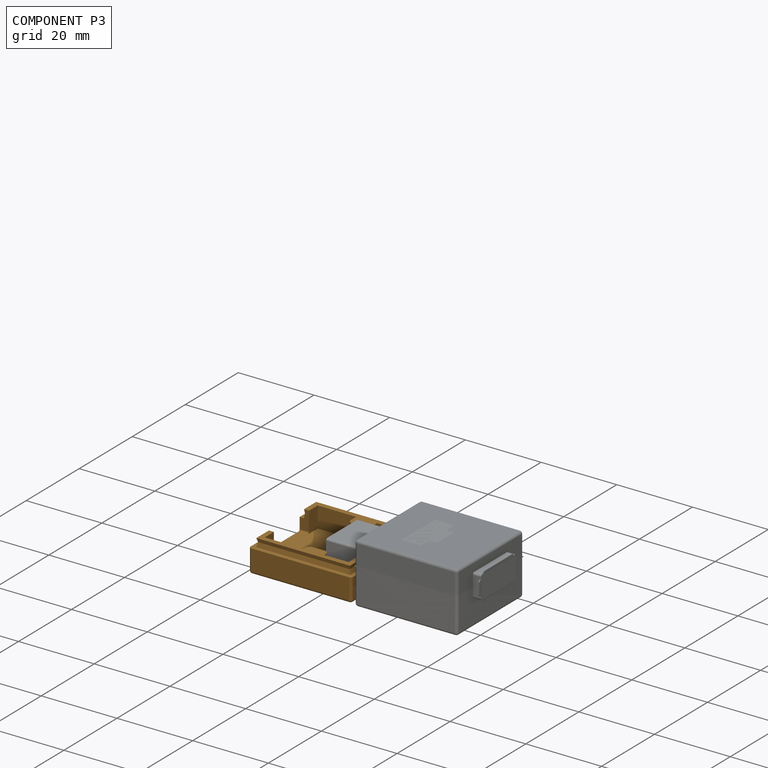
[diagram: component P3 — assembled]
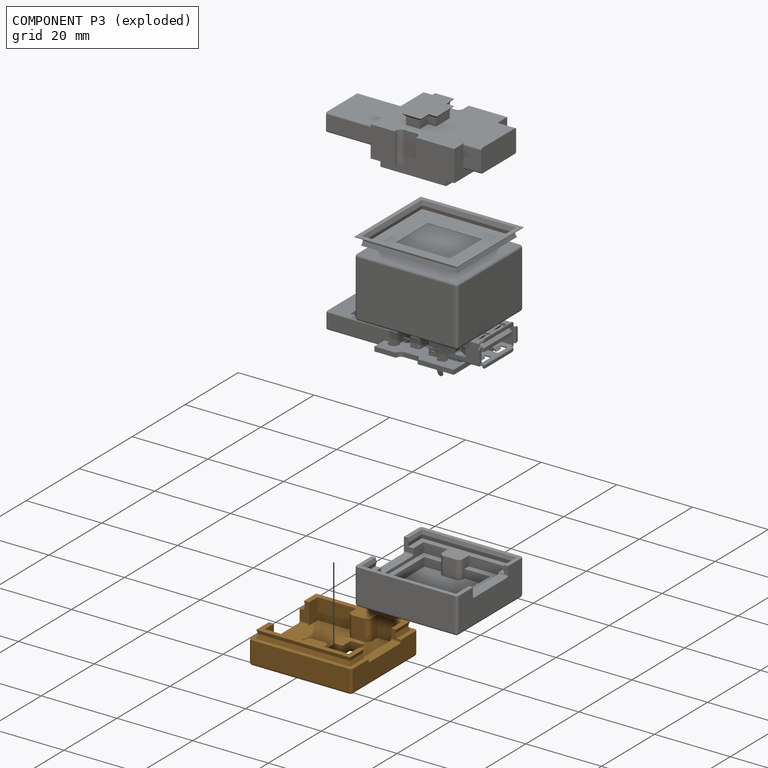
[diagram: component P3 — exploded]
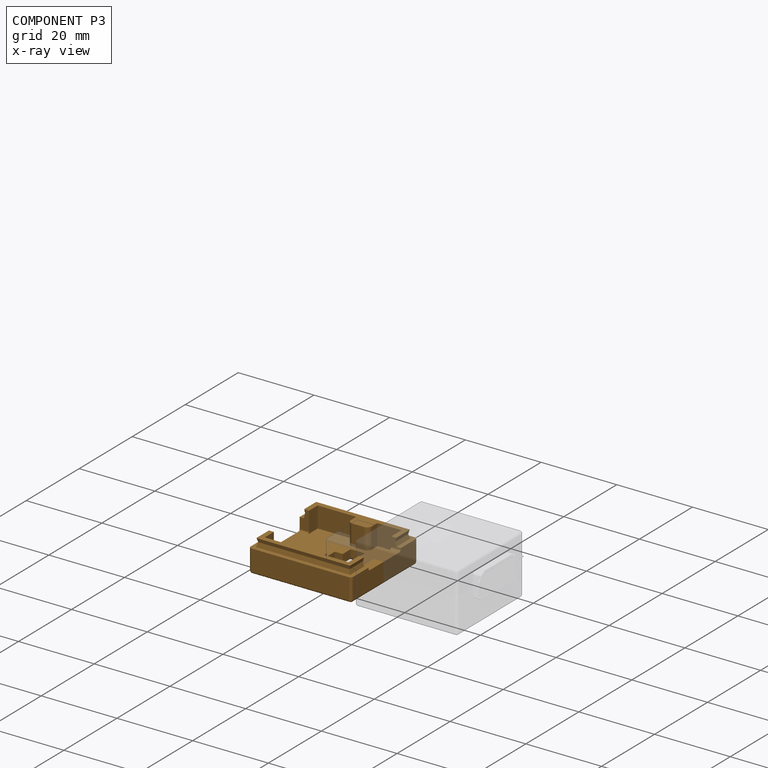
[diagram: component P3 — x-ray view]
COMPONENT P3 — geometry summary ("PO_Top"; no construction recipe available for this part):
  bounding box: 27.1 x 25.0 x 8.3 mm
  tessellated surface: 6,220 triangles
  volume: 2700 mm^3 (48% of its bounding box)
Held by: resting contact with P1 (derived edge); resting contact with P4 (derived edge); resting contact with P5 (derived edge).
PROVENANCE & LICENSES
Assembly and component geometry: a FreeCAD (.FCStd) document from a public repository crawl; components, placements and joints were extracted with FreeCAD and each solid tessellated.
Construction recipes: the document's own serialized feature recipes (and, for linked parts, the recipes of companion documents from the same project).
License: bsd.
Joints: native FreeCAD joints and A2plus constraints are mapped to standard mate types; edges marked 'derived from contact' connect touching components and are measured from the geometry, not modeled.
Verification: 3 of this assembly's 6 components carry a construction recipe (3 from this document itself); the rest are geometry-only. Every component's tessellation passed the extraction mesh gates (mesh-volume checksum against the B-rep where available, bounding-box inflation <= 2%).
Renders: orthographic iso camera (az 35 / el 25); the floor grid conveys scale (grid pitch printed in each image; no ruler). In the exploded view each component is displaced by its stored offset vector: the offsets alone carry the explosion direction (mate normal/axis signs are not orientation cues and do not encode it), and separation distances are assigned per mate-chain, not proportionally to assembly-order depth.
